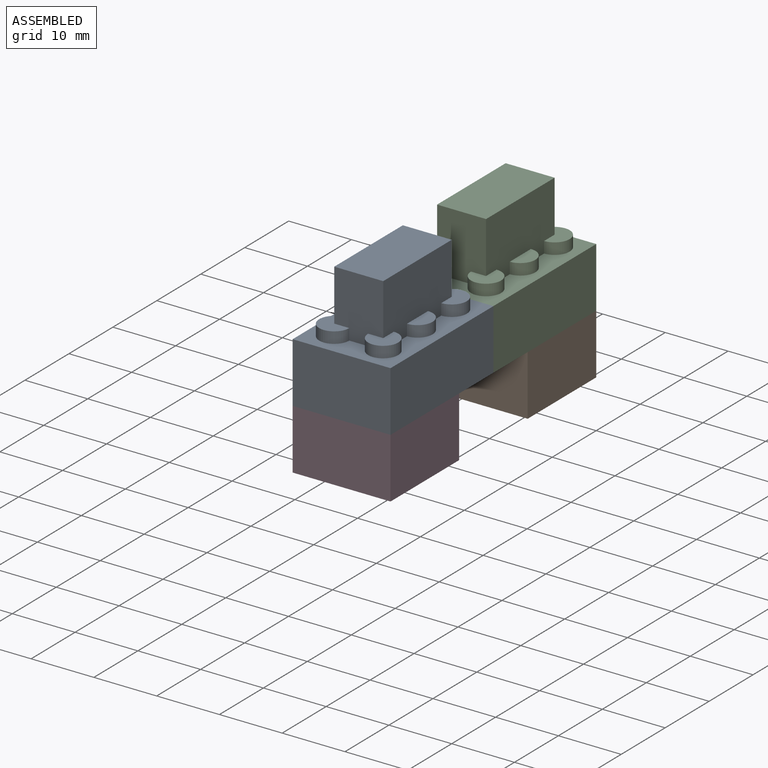
[diagram: assembled view]
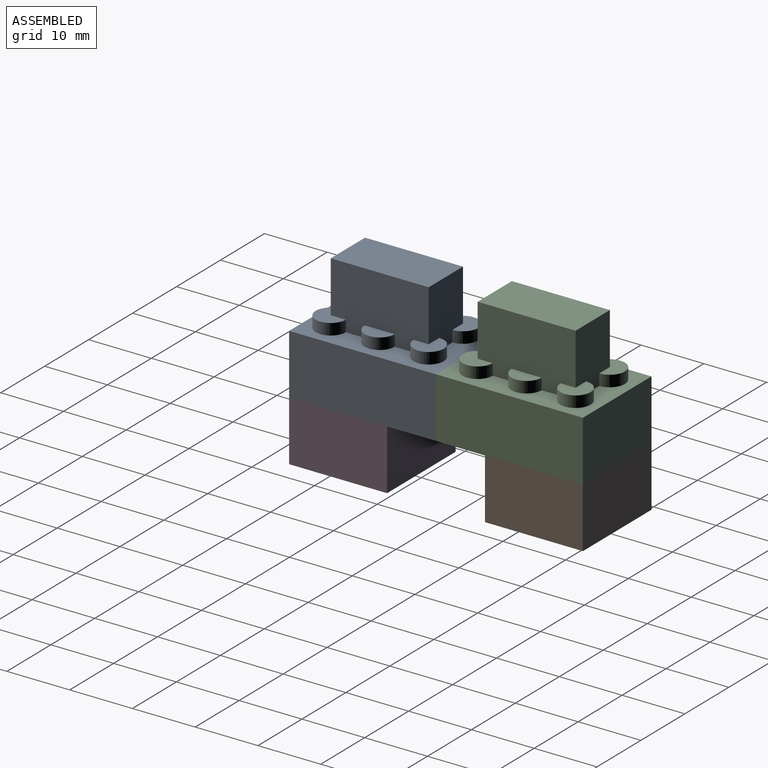
[diagram: assembled view, second angle]
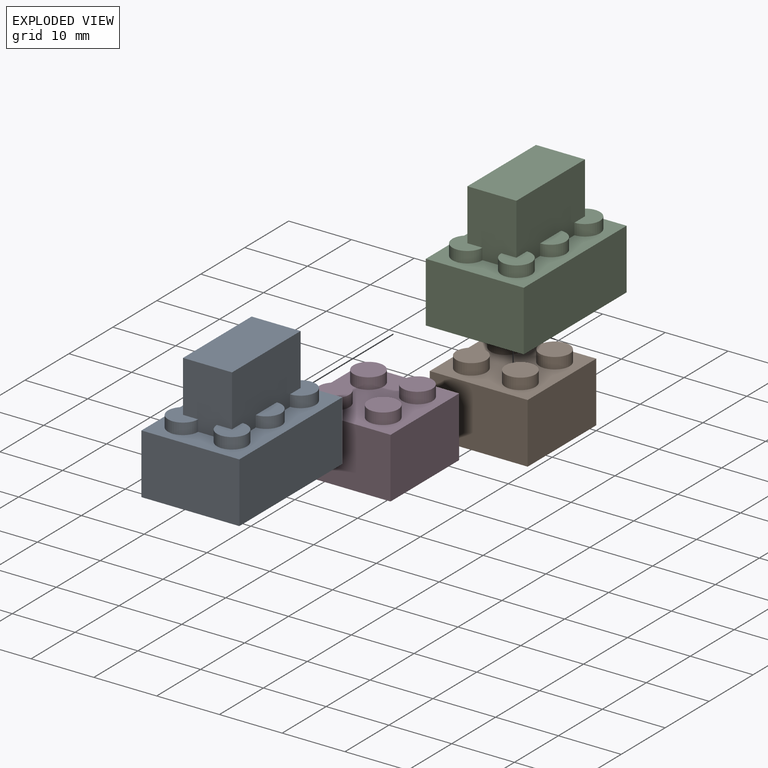
[diagram: exploded view]
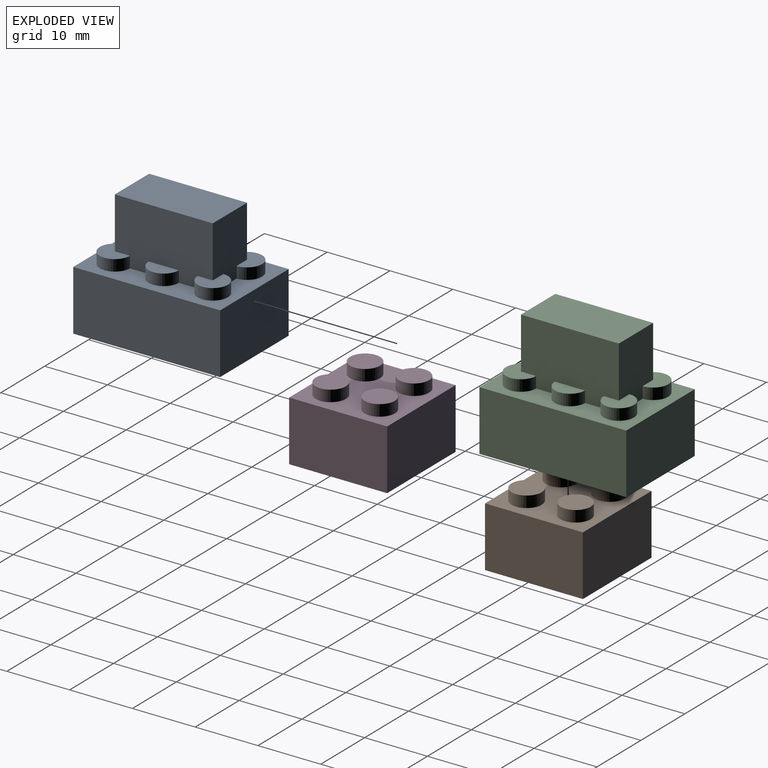
[diagram: exploded view, second angle]
ASSEMBLY  parts=4 mates=4
PART A: 48 faces, bbox 15.6x23.4x19.6 mm
  f0: plane 23.4x15.6mm, normal (0,0,1), area 171mm2, adj f1,f3,f5,f14,f15,f16,f17,f24
  f1: cylinder r=2.4mm len=4.8mm, axis (0,0,-1), area 20.4mm2, adj f0,f2,f44,f45
  f2: plane 4.8x4.8mm, normal (0,0,1), area 13.6mm2, adj f1,f44,f45
  f3: cylinder r=2.4mm len=4.8mm, axis (0,0,-1), area 13.6mm2, adj f0,f4,f45
  f4: plane 4.8x2.4mm, normal (0,0,1), area 9mm2, adj f3,f45
  f5: cylinder r=2.4mm len=4.8mm, axis (0,0,-1), area 20.4mm2, adj f0,f6,f45,f46
  f6: plane 4.8x4.8mm, normal (0,0,1), area 13.6mm2, adj f5,f45,f46
  f7: cylinder r=1.4mm len=2.8mm, axis (0,0,1), area 7.9mm2, adj f22,f34
  f8: cylinder r=1.4mm len=2.8mm, axis (0,0,1), area 7.9mm2, adj f22,f33
  f9: cylinder r=1.4mm len=2.8mm, axis (0,0,1), area 7.9mm2, adj f22,f32
  f10: cylinder r=1.4mm len=2.8mm, axis (0,0,1), area 7.9mm2, adj f22,f29
  f11: cylinder r=1.4mm len=2.8mm, axis (0,0,1), area 7.9mm2, adj f22,f26
  f12: cylinder r=1.4mm len=2.8mm, axis (0,0,1), area 7.9mm2, adj f22,f23
  f13: plane 23.4x15.6mm, normal (0,0,-1), area 101.4mm2, adj f14,f15,f16,f17,f18,f19,f20,f21
  f14: plane 15.6x9.6mm, normal (0,1,0), area 149.8mm2, adj f0,f13,f15,f17
  f15: plane 23.4x9.6mm, normal (-1,0,0), area 224.6mm2, adj f0,f13,f14,f16
  f16: plane 15.6x9.6mm, normal (0,-1,0), area 149.8mm2, adj f0,f13,f15,f17
  f17: plane 23.4x9.6mm, normal (1,0,0), area 224.6mm2, adj f0,f13,f14,f16
  f18: plane 12.8x8.2mm, normal (0,-1,0), area 105mm2, adj f13,f19,f21,f22
  f19: plane 20.6x8.2mm, normal (1,0,0), area 168.9mm2, adj f13,f18,f20,f22
  f20: plane 12.8x8.2mm, normal (0,1,0), area 105mm2, adj f13,f19,f21,f22
  f21: plane 20.6x8.2mm, normal (-1,0,0), area 168.9mm2, adj f13,f18,f20,f22
  f22: plane 20.6x12.8mm, normal (0,0,-1), area 170.2mm2, adj f7,f8,f9,f10,f11,f12,f18,f19
  f23: plane 2.8x2.8mm, normal (0,0,-1), area 6.2mm2, adj f12
  f24: cylinder r=2.4mm len=4.8mm, axis (0,0,-1), area 20.4mm2, adj f0,f25,f43,f44
  f25: plane 4.8x4.8mm, normal (0,0,1), area 13.6mm2, adj f24,f43,f44
  f26: plane 2.8x2.8mm, normal (0,0,-1), area 6.2mm2, adj f11
  f27: cylinder r=2.4mm len=4.8mm, axis (0,0,-1), area 13.6mm2, adj f0,f28,f43
  f28: plane 4.8x2.4mm, normal (0,0,1), area 9mm2, adj f27,f43
  f29: plane 2.8x2.8mm, normal (0,0,-1), area 6.2mm2, adj f10
  f30: cylinder r=2.4mm len=4.8mm, axis (0,0,-1), area 20.4mm2, adj f0,f31,f43,f46
  f31: plane 4.8x4.8mm, normal (0,0,1), area 13.6mm2, adj f30,f43,f46
  f32: plane 2.8x2.8mm, normal (0,0,-1), area 6.2mm2, adj f9
  f33: plane 2.8x2.8mm, normal (0,0,-1), area 6.2mm2, adj f8
  f34: plane 2.8x2.8mm, normal (0,0,-1), area 6.2mm2, adj f7
  f35: cylinder r=2.5mm len=8.2mm, axis (0,0,1), area 128.8mm2, adj f37,f38
  f36: cylinder r=3mm len=8.2mm, axis (0,0,1), area 154.6mm2, adj f22,f37
  f37: plane 6x6mm, normal (0,0,-1), area 8.6mm2, adj f35,f36
  f38: plane 5x5mm, normal (0,0,-1), area 19.6mm2, adj f35
  f39: cylinder r=2.5mm len=8.2mm, axis (0,0,1), area 128.8mm2, adj f41,f42
  f40: cylinder r=3mm len=8.2mm, axis (0,0,1), area 154.6mm2, adj f22,f41
  f41: plane 6x6mm, normal (0,0,-1), area 8.6mm2, adj f39,f40
  f42: plane 5x5mm, normal (0,0,-1), area 19.6mm2, adj f39
  f43: plane 15.6x10mm, normal (-1,0,0), area 138.7mm2, adj f0,f24,f25,f27,f28,f30,f31,f44
  f44: plane 10x7.8mm, normal (0,-1,0), area 69.4mm2, adj f0,f1,f2,f24,f25,f43,f45,f47
  f45: plane 15.6x10mm, normal (1,0,0), area 138.7mm2, adj f0,f1,f2,f3,f4,f5,f6,f44
  f46: plane 10x7.8mm, normal (0,1,0), area 69.4mm2, adj f0,f5,f6,f30,f31,f43,f45,f47
  f47: plane 15.6x7.8mm, normal (0,0,1), area 121.7mm2, adj f43,f44,f45,f46
PART B: 31 faces, bbox 15.6x15.6x11.4 mm
  f0: cylinder r=1.4mm len=2.8mm, axis (0,0,1), area 7.9mm2, adj f14,f24
  f1: cylinder r=1.4mm len=2.8mm, axis (0,0,1), area 7.9mm2, adj f14,f21
  f2: cylinder r=1.4mm len=2.8mm, axis (0,0,1), area 7.9mm2, adj f14,f18
  f3: cylinder r=1.4mm len=2.8mm, axis (0,0,1), area 7.9mm2, adj f14,f15
  f4: plane 15.6x15.6mm, normal (0,0,-1), area 79.5mm2, adj f5,f6,f7,f8,f10,f11,f12,f13
  f5: plane 15.6x9.6mm, normal (0,1,0), area 149.8mm2, adj f4,f6,f8,f9
  f6: plane 15.6x9.6mm, normal (-1,0,0), area 149.8mm2, adj f4,f5,f7,f9
  f7: plane 15.6x9.6mm, normal (0,-1,0), area 149.8mm2, adj f4,f6,f8,f9
  f8: plane 15.6x9.6mm, normal (1,0,0), area 149.8mm2, adj f4,f5,f7,f9
  f9: plane 15.6x15.6mm, normal (0,0,1), area 171mm2, adj f5,f6,f7,f8,f16,f19,f22,f25
  f10: plane 12.8x8.2mm, normal (0,-1,0), area 105mm2, adj f4,f11,f13,f14
  f11: plane 12.8x8.2mm, normal (1,0,0), area 105mm2, adj f4,f10,f12,f14
  f12: plane 12.8x8.2mm, normal (0,1,0), area 105mm2, adj f4,f11,f13,f14
  f13: plane 12.8x8.2mm, normal (-1,0,0), area 105mm2, adj f4,f10,f12,f14
  f14: plane 12.8x12.8mm, normal (0,0,-1), area 110.9mm2, adj f0,f1,f2,f3,f10,f11,f12,f13
  f15: plane 2.8x2.8mm, normal (0,0,-1), area 6.2mm2, adj f3
  f16: cylinder r=2.4mm len=4.8mm, axis (0,0,-1), area 27.1mm2, adj f9,f17
  f17: plane 4.8x4.8mm, normal (0,0,1), area 18.1mm2, adj f16
  f18: plane 2.8x2.8mm, normal (0,0,-1), area 6.2mm2, adj f2
  f19: cylinder r=2.4mm len=4.8mm, axis (0,0,-1), area 27.1mm2, adj f9,f20
  f20: plane 4.8x4.8mm, normal (0,0,1), area 18.1mm2, adj f19
  f21: plane 2.8x2.8mm, normal (0,0,-1), area 6.2mm2, adj f1
  f22: cylinder r=2.4mm len=4.8mm, axis (0,0,-1), area 27.1mm2, adj f9,f23
  f23: plane 4.8x4.8mm, normal (0,0,1), area 18.1mm2, adj f22
  f24: plane 2.8x2.8mm, normal (0,0,-1), area 6.2mm2, adj f0
  f25: cylinder r=2.4mm len=4.8mm, axis (0,0,-1), area 27.1mm2, adj f9,f26
  f26: plane 4.8x4.8mm, normal (0,0,1), area 18.1mm2, adj f25
  f27: cylinder r=2.5mm len=8.2mm, axis (0,0,1), area 128.8mm2, adj f29,f30
  f28: cylinder r=3mm len=8.2mm, axis (0,0,1), area 154.6mm2, adj f14,f29
  f29: plane 6x6mm, normal (0,0,-1), area 8.6mm2, adj f27,f28
  f30: plane 5x5mm, normal (0,0,-1), area 19.6mm2, adj f27
PART C: same geometry as A
PART D: same geometry as B
PLACE A t=(-15.48,43.05,12.55)mm
PLACE B t=(84.52,74.25,2.95)mm
PLACE C t=(-15.48,66.45,12.55)mm
PLACE D t=(84.52,43.05,2.95)mm
MATE cylindrical C.f5 <-> B.f0  axis (0,0,-1) through (96.22,85.95,20.75)mm
MATE fastened A.f35 <-> D.f27  axis (0,0,1) through (92.32,50.85,12.55)mm
MATE planar C.f13 <-> B.f9  axis (0,0,-1) through (98.72,67.85,12.55)mm
MATE fastened A.f14 <-> C.f16  axis (0,1,0) through (92.32,66.45,17.35)mm
